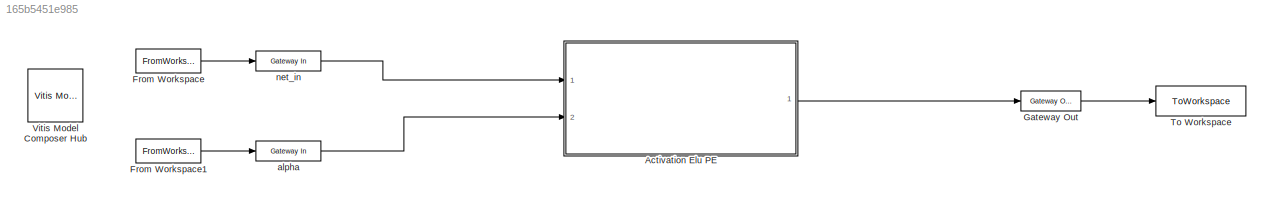
MODEL slx_165b5451e985
KIND model
CONFIG AbsTol = auto
CONFIG EnableMultiTasking = off
CONFIG FixedStep = auto
CONFIG MaxStep = auto
CONFIG MinStep = auto
CONFIG RelTol = 1e-3
CONFIG SampleTimeConstraint = Unconstrained
CONFIG SolverName = VariableStepAuto
CONFIG StartTime = 0.0
CONFIG StopTime = 15
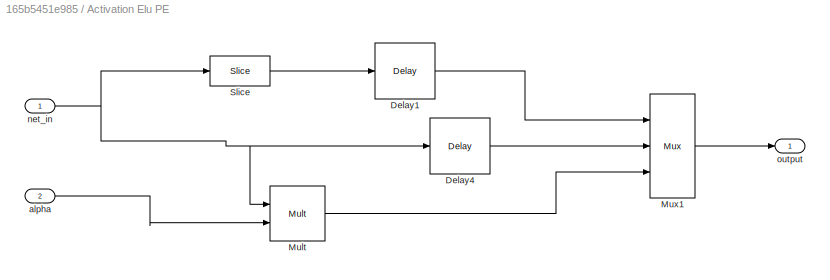
BLOCK [SubSystem] Activation Elu PE
  Ports = [2, 1]
  RequestExecContextInheritance = off
BLOCK [Reference] Activation Elu PE/Delay1  REF=hdlBasic/Delay
  Ports = [1, 1]
  SourceBlock = hdlBasic/Delay
  SourceType = Delay Block
BLOCK [Reference] Activation Elu PE/Delay4  REF=hdlBasic/Delay
  Ports = [1, 1]
  SourceBlock = hdlBasic/Delay
  SourceType = Delay Block
BLOCK [Reference] Activation Elu PE/Mult  REF=hdlBasic/Mult
  Ports = [2, 1]
  SourceBlock = hdlBasic/Mult
  SourceType = Multiplier Block
BLOCK [Reference] Activation Elu PE/Mux1  REF=hdlBasic/Mux
  Ports = [3, 1]
  SourceBlock = hdlBasic/Mux
  SourceType = Bus Multiplexer Block
BLOCK [Reference] Activation Elu PE/Slice  REF=hdlBasic/Slice
  Ports = [1, 1]
  SourceBlock = hdlBasic/Slice
  SourceType = Bit Slice Extractor Block
BLOCK [Inport] Activation Elu PE/alpha
  Port = 2
BLOCK [Inport] Activation Elu PE/net_in
BLOCK [Outport] Activation Elu PE/output
BLOCK [FromWorkspace] From Workspace
  VariableName = net_in
BLOCK [FromWorkspace] From Workspace1
  VariableName = alpha
BLOCK [Reference] Gateway Out  REF=hdlBasic/Gateway Out
  Ports = [1, 1]
  SourceBlock = hdlBasic/Gateway Out
  SourceType = Gateway Out Block
BLOCK [ToWorkspace] To Workspace
  FixptAsFi = on
  MaxDataPoints = inf
  Ports = [1]
  SampleTime = -1
  SaveFormat = Timeseries
  VariableName = act_out
BLOCK [Reference] Vitis Model Composer Hub  REF=vmcUtilities/Vitis Model Composer Hub
  Ports = []
  SourceBlock = vmcUtilities/Vitis Model Composer Hub
  SourceType = VMC Hub
  Tag = genX
  UserDataPersistent = on
BLOCK [Reference] alpha  REF=hdlBasic/Gateway In
  Ports = [1, 1]
  SourceBlock = hdlBasic/Gateway In
  SourceType = Gateway In Block
BLOCK [Reference] net_in  REF=hdlBasic/Gateway In
  Ports = [1, 1]
  SourceBlock = hdlBasic/Gateway In
  SourceType = Gateway In Block
LINE Activation Elu PE/Delay1:1 -> Activation Elu PE/Mux1:1
LINE Activation Elu PE/Delay4:1 -> Activation Elu PE/Mux1:2
LINE Activation Elu PE/Mult:1 -> Activation Elu PE/Mux1:3
LINE Activation Elu PE/Mux1:1 -> Activation Elu PE/output:1
LINE Activation Elu PE/Slice:1 -> Activation Elu PE/Delay1:1
LINE Activation Elu PE/alpha:1 -> Activation Elu PE/Mult:2
NET Activation Elu PE/net_in:1 -> Activation Elu PE/Delay4:1, Activation Elu PE/Mult:1, Activation Elu PE/Slice:1
LINE Activation Elu PE:1 -> Gateway Out:1
LINE From Workspace1:1 -> alpha:1
LINE From Workspace:1 -> net_in:1
LINE Gateway Out:1 -> To Workspace:1
LINE alpha:1 -> Activation Elu PE:2
LINE net_in:1 -> Activation Elu PE:1
note: NET lines group one-source signal fan-out (src -> all destinations, sorted); 1:1 wires keep LINE
